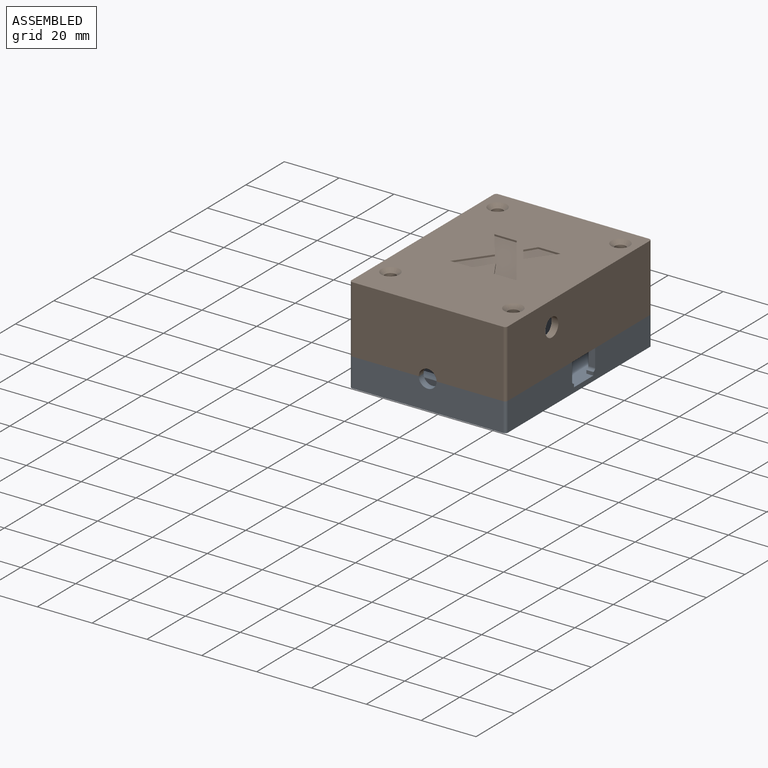
[diagram: assembled view]
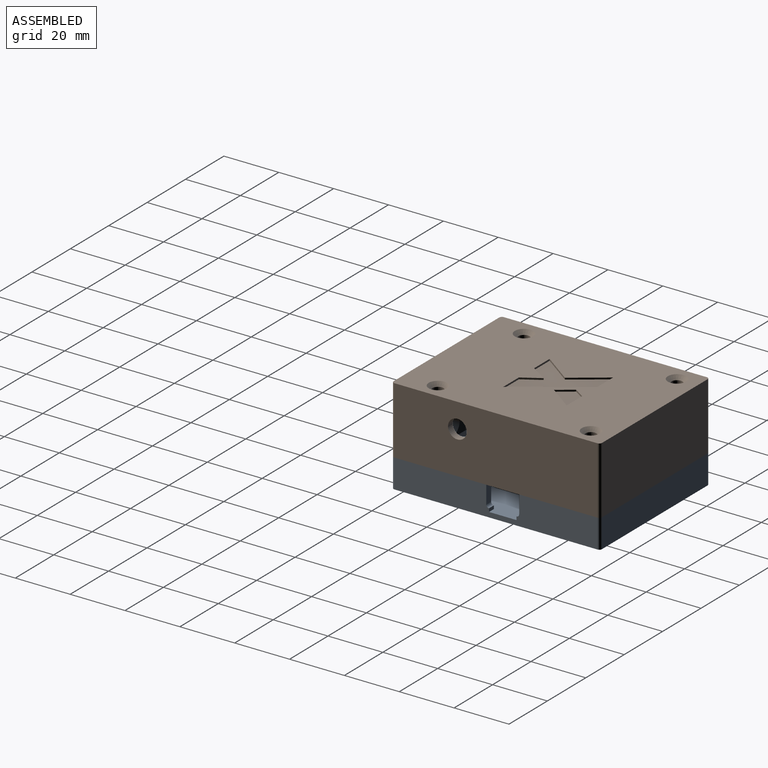
[diagram: assembled view, second angle]
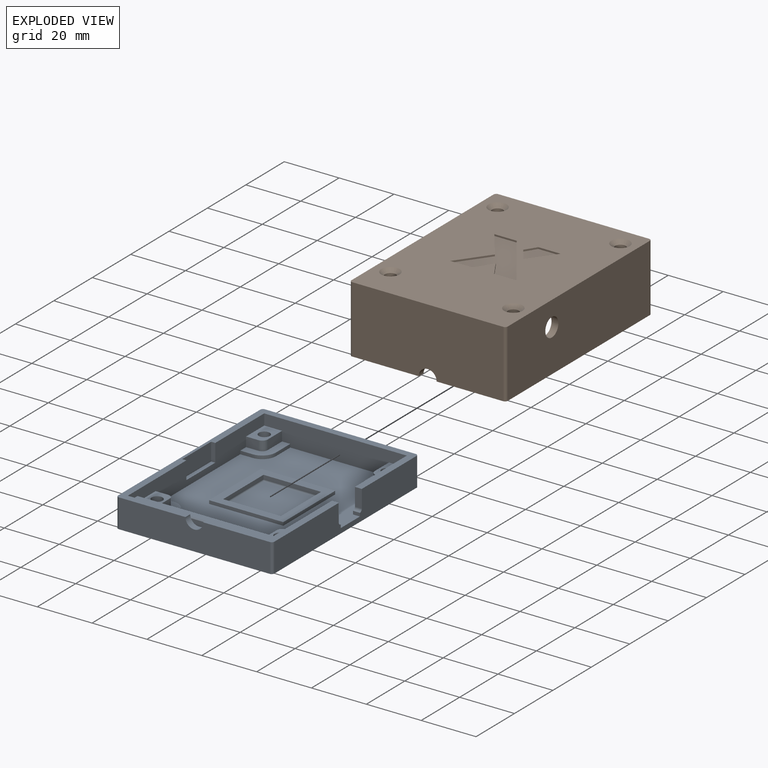
[diagram: exploded view]
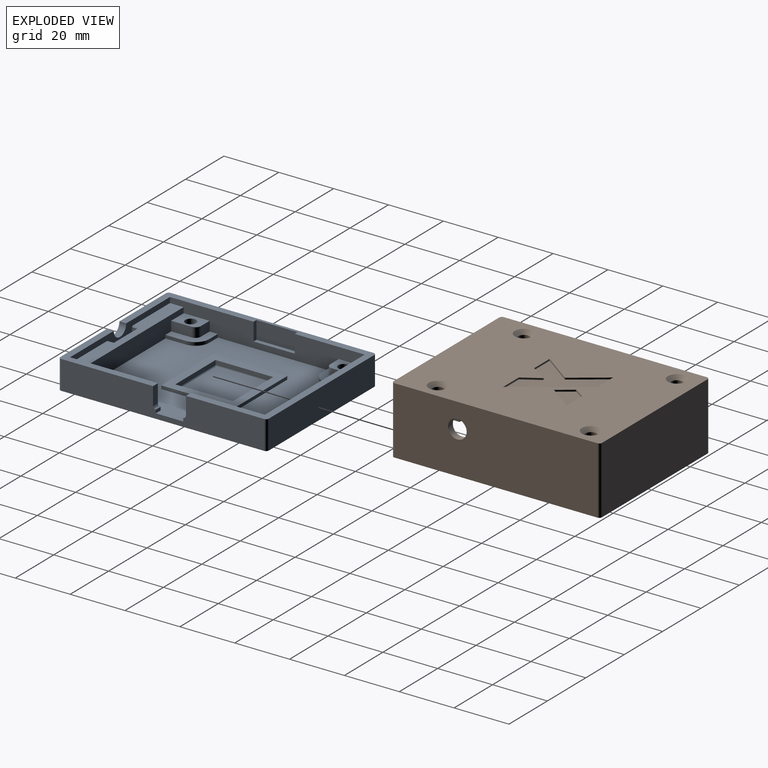
[diagram: exploded view, second angle]
ASSEMBLY  parts=2 mates=4
PART A: 115 faces, bbox 57x76x10.5 mm
  f0: plane 12.45x9.5mm, normal (0,0,1), area 52.3mm2, adj f18,f19,f21,f22,f68,f89,f90,f91
  f1: plane 12.45x9.5mm, normal (0,0,1), area 52.3mm2, adj f7,f30,f31,f65,f73,f95,f96,f97
  f2: plane 12.45x9.5mm, normal (0,0,1), area 52.3mm2, adj f18,f27,f28,f66,f73,f92,f93,f94
  f3: plane 12.45x9.5mm, normal (0,0,1), area 52.3mm2, adj f8,f19,f24,f25,f67,f100,f101,f102
  f4: plane 52x5mm, normal (0,0,1), area 228.1mm2, adj f7,f18,f20,f73,f83,f84,f85
  f5: plane 76x57mm, normal (0,0,1), area 427.5mm2, adj f8,f9,f14,f15,f16,f18,f19,f20
  f6: plane 34.5x25.25mm, normal (0,0,1), area 142.9mm2, adj f7,f9,f16,f20,f35,f69,f74
  f7: plane 33x8.7mm, normal (-1,0,0), area 198.3mm2, adj f1,f4,f6,f20,f30,f32,f69,f71
  f8: plane 28x8.7mm, normal (-1,0,0), area 188.3mm2, adj f3,f5,f19,f24,f26,f70,f72,f99
  f9: plane 74x10.5mm, normal (1,0,0), area 675.4mm2, adj f5,f6,f17,f35,f36,f69,f70,f71
  f10: cylinder r=2mm len=4.1mm, axis (0,0,1), area 51.5mm2, adj f32,f64
  f11: cylinder r=2mm len=4.1mm, axis (0,0,1), area 51.5mm2, adj f29,f57
  f12: cylinder r=2mm len=4.1mm, axis (0,0,1), area 51.5mm2, adj f26,f50
  f13: cylinder r=2mm len=4.1mm, axis (0,0,1), area 51.5mm2, adj f23,f43
  f14: plane 55x10.5mm, normal (0,1,0), area 577.5mm2, adj f5,f17,f33,f36
  f15: plane 74x10.5mm, normal (-1,0,0), area 777mm2, adj f5,f17,f33,f34
  f16: plane 55x10.5mm, normal (0,-1,0), area 560.9mm2, adj f5,f6,f17,f34,f35,f74
  f17: plane 76x57mm, normal (0,0,-1), area 4226.4mm2, adj f9,f14,f15,f16,f33,f34,f35,f36
  f18: plane 71x8.7mm, normal (1,0,0), area 390.7mm2, adj f0,f2,f4,f5,f19,f20,f21,f23
  f19: plane 52x8.7mm, normal (0,-1,0), area 384.1mm2, adj f0,f3,f5,f8,f18,f22,f23,f25
  f20: plane 52x6mm, normal (0,1,0), area 137.6mm2, adj f4,f5,f6,f7,f18,f74,f79,f80
  f21: plane 4.5x3.5mm, normal (0,-1,0), area 15.8mm2, adj f0,f18,f23,f68
  f22: plane 7.45x3.5mm, normal (1,0,0), area 26.1mm2, adj f0,f19,f23,f68
  f23: plane 9.45x6.5mm, normal (0,0,1), area 48mm2, adj f13,f18,f19,f21,f22,f68
  f24: plane 4.5x3.5mm, normal (0,-1,0), area 15.8mm2, adj f3,f8,f26,f67
  f25: plane 7.45x3.5mm, normal (-1,0,0), area 26.1mm2, adj f3,f19,f26,f67
  f26: plane 9.45x6.5mm, normal (0,0,1), area 48mm2, adj f8,f12,f19,f24,f25,f67
  f27: plane 4.5x3.5mm, normal (0,1,0), area 15.8mm2, adj f2,f18,f29,f66
  f28: plane 7.45x3.5mm, normal (1,0,0), area 26.1mm2, adj f2,f29,f66,f73
  f29: plane 9.45x6.5mm, normal (0,0,1), area 48mm2, adj f11,f18,f27,f28,f66,f73
  f30: plane 4.5x3.5mm, normal (0,1,0), area 15.8mm2, adj f1,f7,f32,f65
  f31: plane 7.45x3.5mm, normal (-1,0,0), area 26.1mm2, adj f1,f32,f65,f73
  f32: plane 9.45x6.5mm, normal (0,0,1), area 48mm2, adj f7,f10,f30,f31,f65,f73
  f33: cylinder r=1mm len=10.5mm, axis (0,0,1), area 16.5mm2, adj f5,f14,f15,f17
  f34: cylinder r=1mm len=10.5mm, axis (0,0,-1), area 16.5mm2, adj f5,f15,f16,f17
  f35: cylinder r=1mm len=10.5mm, axis (0,0,1), area 16.5mm2, adj f6,f9,f16,f17
  f36: cylinder r=1mm len=10.5mm, axis (0,0,-1), area 16.5mm2, adj f5,f9,f14,f17
  f37: plane 2.75x2.4mm, normal (-0.87,-0.5,0), area 7.6mm2, adj f17,f38,f42,f43
  f38: plane 2.75x2.4mm, normal (-0.87,0.5,0), area 7.6mm2, adj f17,f37,f39,f43
  f39: plane 3.18x2.4mm, normal (0,1,0), area 7.6mm2, adj f17,f38,f40,f43
  f40: plane 2.75x2.4mm, normal (0.87,0.5,0), area 7.6mm2, adj f17,f39,f41,f43
  f41: plane 2.75x2.4mm, normal (0.87,-0.5,0), area 7.6mm2, adj f17,f40,f42,f43
  f42: plane 3.18x2.4mm, normal (0,-1,0), area 7.6mm2, adj f17,f37,f41,f43
  f43: plane 6.35x5.5mm, normal (0,0,-1), area 13.6mm2, adj f13,f37,f38,f39,f40,f41,f42
  f44: plane 2.75x2.4mm, normal (-0.87,0.5,0), area 7.6mm2, adj f17,f45,f49,f50
  f45: plane 3.18x2.4mm, normal (0,1,0), area 7.6mm2, adj f17,f44,f46,f50
  f46: plane 2.75x2.4mm, normal (0.87,0.5,0), area 7.6mm2, adj f17,f45,f47,f50
  f47: plane 2.75x2.4mm, normal (0.87,-0.5,0), area 7.6mm2, adj f17,f46,f48,f50
  f48: plane 3.18x2.4mm, normal (0,-1,0), area 7.6mm2, adj f17,f47,f49,f50
  f49: plane 2.75x2.4mm, normal (-0.87,-0.5,0), area 7.6mm2, adj f17,f44,f48,f50
  f50: plane 6.35x5.5mm, normal (0,0,-1), area 13.6mm2, adj f12,f44,f45,f46,f47,f48,f49
  f51: plane 2.75x2.4mm, normal (-0.87,-0.5,0), area 7.6mm2, adj f17,f52,f56,f57
  f52: plane 2.75x2.4mm, normal (-0.87,0.5,0), area 7.6mm2, adj f17,f51,f53,f57
  f53: plane 3.18x2.4mm, normal (0,1,0), area 7.6mm2, adj f17,f52,f54,f57
  f54: plane 2.75x2.4mm, normal (0.87,0.5,0), area 7.6mm2, adj f17,f53,f55,f57
  f55: plane 2.75x2.4mm, normal (0.87,-0.5,0), area 7.6mm2, adj f17,f54,f56,f57
  f56: plane 3.18x2.4mm, normal (0,-1,0), area 7.6mm2, adj f17,f51,f55,f57
  f57: plane 6.35x5.5mm, normal (0,0,-1), area 13.6mm2, adj f11,f51,f52,f53,f54,f55,f56
  f58: plane 2.75x2.4mm, normal (-0.87,-0.5,0), area 7.6mm2, adj f17,f59,f63,f64
  f59: plane 2.75x2.4mm, normal (-0.87,0.5,0), area 7.6mm2, adj f17,f58,f60,f64
  f60: plane 3.18x2.4mm, normal (0,1,0), area 7.6mm2, adj f17,f59,f61,f64
  f61: plane 2.75x2.4mm, normal (0.87,0.5,0), area 7.6mm2, adj f17,f60,f62,f64
  f62: plane 2.75x2.4mm, normal (0.87,-0.5,0), area 7.6mm2, adj f17,f61,f63,f64
  f63: plane 3.18x2.4mm, normal (0,-1,0), area 7.6mm2, adj f17,f58,f62,f64
  f64: plane 6.35x5.5mm, normal (0,0,-1), area 13.6mm2, adj f10,f58,f59,f60,f61,f62,f63
  f65: cylinder r=2mm len=3.5mm, axis (0,0,-1), area 11mm2, adj f1,f30,f31,f32
  f66: cylinder r=2mm len=3.5mm, axis (0,0,-1), area 11mm2, adj f2,f27,f28,f29
  f67: cylinder r=2mm len=3.5mm, axis (0,0,1), area 11mm2, adj f3,f24,f25,f26
  f68: cylinder r=2mm len=3.5mm, axis (0,0,1), area 11mm2, adj f0,f21,f22,f23
  f69: plane 6.5x2.5mm, normal (0,1,0), area 16.3mm2, adj f6,f7,f9,f71
  f70: plane 6.5x2.5mm, normal (0,-1,0), area 16.3mm2, adj f5,f8,f9,f72
  f71: cylinder r=1mm len=2.5mm, axis (1,0,0), area 3.9mm2, adj f7,f9,f69,f98
  f72: cylinder r=1mm len=2.5mm, axis (-1,0,0), area 3.9mm2, adj f8,f9,f70,f99
  f73: plane 52x6.7mm, normal (0,1,0), area 280.1mm2, adj f1,f2,f4,f7,f18,f28,f29,f31
  f74: cylinder r=3.25mm len=6.5mm, axis (0,-1,0), area 25.5mm2, adj f5,f6,f16,f20
  f75: plane 6.5x1.5mm, normal (0,1,0), area 9.8mm2, adj f5,f18,f76,f78
  f76: plane 15x1.5mm, normal (0,0,1), area 22.5mm2, adj f18,f75,f77,f78
  f77: plane 6.5x1.5mm, normal (0,-1,0), area 9.8mm2, adj f5,f18,f76,f78
  f78: plane 15x6.5mm, normal (1,0,0), area 97.5mm2, adj f5,f75,f76,f77
  f79: plane 3.6x2mm, normal (1,0,0), area 7.2mm2, adj f20,f81,f82,f83
  f80: plane 3.6x2mm, normal (-1,0,0), area 7.2mm2, adj f20,f81,f82,f85
  f81: plane 12.5x3.6mm, normal (0,-1,0), area 45mm2, adj f79,f80,f82,f84
  f82: plane 12.5x2mm, normal (0,0,1), area 25mm2, adj f20,f79,f80,f81
  f83: plane 2.4x0.4mm, normal (0.71,0,0.71), area 1.2mm2, adj f4,f20,f79,f84
  f84: plane 13.3x0.4mm, normal (0,-0.71,0.71), area 7.3mm2, adj f4,f81,f83,f85
  f85: plane 2.4x0.4mm, normal (-0.71,0,0.71), area 1.2mm2, adj f4,f20,f80,f84
  f86: plane 27x1.2mm, normal (0,1,0), area 32.4mm2, adj f87,f103,f104,f110
  f87: plane 27x1.2mm, normal (1,0,0), area 32.4mm2, adj f86,f88,f104,f110
  f88: plane 27x1.2mm, normal (0,-1,0), area 32.4mm2, adj f87,f103,f104,f110
  f89: plane 7.45x1.2mm, normal (1,0,0), area 8.9mm2, adj f0,f19,f90,f104
  f90: cylinder r=5mm len=5mm, axis (0,0,1), area 9.4mm2, adj f0,f89,f91,f104
  f91: plane 4.5x1.2mm, normal (0,-1,0), area 5.4mm2, adj f0,f18,f90,f104
  f92: plane 4.5x1.2mm, normal (0,1,0), area 5.4mm2, adj f2,f18,f93,f104
  f93: cylinder r=5mm len=5mm, axis (0,0,1), area 9.4mm2, adj f2,f92,f94,f104
  f94: plane 7.45x1.2mm, normal (1,0,0), area 8.9mm2, adj f2,f73,f93,f104
  f95: plane 7.45x1.2mm, normal (-1,0,0), area 8.9mm2, adj f1,f73,f96,f104
  f96: cylinder r=5mm len=5mm, axis (0,0,1), area 9.4mm2, adj f1,f95,f97,f104
  f97: plane 4.5x1.2mm, normal (0,1,0), area 5.4mm2, adj f1,f7,f96,f104
  f98: plane 2.5x1.2mm, normal (0,1,0), area 3mm2, adj f7,f9,f71,f104
  f99: plane 2.5x1.2mm, normal (0,-1,0), area 3mm2, adj f8,f9,f72,f104
  f100: plane 4.5x1.2mm, normal (0,-1,0), area 5.4mm2, adj f3,f8,f101,f104
  f101: cylinder r=5mm len=5mm, axis (0,0,1), area 9.4mm2, adj f3,f100,f102,f104
  f102: plane 7.45x1.2mm, normal (-1,0,0), area 8.9mm2, adj f3,f19,f101,f104
  f103: plane 27x1.2mm, normal (-1,0,0), area 32.4mm2, adj f86,f88,f104,f110
  f104: plane 66x54.5mm, normal (0,0,1), area 2276.4mm2, adj f7,f8,f9,f18,f19,f73,f86,f87
  f105: plane 20x20mm, normal (0,0,1), area 400mm2, adj f111,f112,f113,f114
  f106: plane 21x1.5mm, normal (0,1,0), area 31.5mm2, adj f107,f109,f110,f114
  f107: plane 21x1.5mm, normal (-1,0,0), area 31.5mm2, adj f106,f108,f110,f113
  f108: plane 21x1.5mm, normal (0,-1,0), area 31.5mm2, adj f107,f109,f110,f111
  f109: plane 21x1.5mm, normal (1,0,0), area 31.5mm2, adj f106,f108,f110,f112
  f110: plane 27x27mm, normal (0,0,1), area 288mm2, adj f86,f87,f88,f103,f106,f107,f108,f109
  f111: cylinder r=0.5mm len=21mm, axis (-1,0,0), area 16.2mm2, adj f105,f108,f112,f113
  f112: cylinder r=0.5mm len=21mm, axis (0,-1,0), area 16.2mm2, adj f105,f109,f111,f114
  f113: cylinder r=0.5mm len=21mm, axis (0,1,0), area 16.2mm2, adj f105,f107,f111,f114
  f114: cylinder r=0.5mm len=21mm, axis (1,0,0), area 16.2mm2, adj f105,f106,f112,f113
PART B: 77 faces, bbox 57x76x26.4 mm
  f0: plane 76x57mm, normal (0,0,-1), area 646.8mm2, adj f1,f3,f6,f8,f9,f10,f11,f12
  f1: plane 55x24.5mm, normal (0,-1,0), area 1330.9mm2, adj f0,f15,f24,f25,f75
  f2: plane 24.1x7.95mm, normal (-1,0,0), area 191.6mm2, adj f13,f56,f58,f61
  f3: plane 7.95x1.4mm, normal (1,0,0), area 11.1mm2, adj f0,f56,f58,f60
  f4: plane 6.95x5mm, normal (0,0,-1), area 22.2mm2, adj f45,f59,f60,f61,f62
  f5: plane 24.1x8.95mm, normal (1,0,0), area 215.7mm2, adj f13,f43,f57,f74
  f6: plane 8.95x1.4mm, normal (-1,0,0), area 12.5mm2, adj f0,f43,f57,f71
  f7: plane 7.95x5mm, normal (0,0,-1), area 27.2mm2, adj f49,f63,f64,f65,f66
  f8: plane 6x1.4mm, normal (0,1,0), area 8.4mm2, adj f0,f9,f54,f69
  f9: plane 24.1x9.45mm, normal (1,0,0), area 227mm2, adj f0,f8,f13,f14,f40,f70
  f10: plane 24.1x9.45mm, normal (-1,0,0), area 227mm2, adj f0,f13,f14,f42,f53,f63
  f11: plane 48.1x22.7mm, normal (-1,0,0), area 1055.6mm2, adj f0,f13,f42,f58,f76
  f12: plane 47.1x22.7mm, normal (1,0,0), area 1069.2mm2, adj f0,f13,f40,f43
  f13: plane 71x52mm, normal (0,0,-1), area 3459.3mm2, adj f2,f5,f9,f10,f11,f12,f14,f19
  f14: plane 39x22.7mm, normal (0,-1,0), area 885.3mm2, adj f0,f9,f10,f13
  f15: plane 76x57mm, normal (0,0,1), area 3884.3mm2, adj f1,f16,f17,f18,f22,f23,f24,f25
  f16: plane 74x24.5mm, normal (1,0,0), area 1776.7mm2, adj f0,f15,f22,f25,f76
  f17: plane 55x24.5mm, normal (0,1,0), area 1347.5mm2, adj f0,f15,f22,f23
  f18: plane 74x24.5mm, normal (-1,0,0), area 1813mm2, adj f0,f15,f23,f24
  f19: plane 22.7x5.5mm, normal (1,0,0), area 124.8mm2, adj f0,f13,f20,f57
  f20: plane 52x22.7mm, normal (0,1,0), area 1163.8mm2, adj f0,f13,f19,f21,f75
  f21: plane 22.7x5.5mm, normal (-1,0,0), area 124.8mm2, adj f0,f13,f20,f56
  f22: cylinder r=1mm len=24.5mm, axis (0,0,1), area 38.5mm2, adj f0,f15,f16,f17
  f23: cylinder r=1mm len=24.5mm, axis (0,0,-1), area 38.5mm2, adj f0,f15,f17,f18
  f24: cylinder r=1mm len=24.5mm, axis (0,0,1), area 38.5mm2, adj f0,f1,f15,f18
  f25: cylinder r=1mm len=24.5mm, axis (0,0,-1), area 38.5mm2, adj f0,f1,f15,f16
  f26: plane 8.14x0.6mm, normal (0,-1,0), area 4.9mm2, adj f15,f27,f33,f34
  f27: plane 11.68x8.35mm, normal (0.81,0.58,0), area 8.6mm2, adj f15,f26,f28,f34
  f28: plane 11.39x8.29mm, normal (0.81,-0.59,0), area 8.5mm2, adj f15,f27,f29,f34
  f29: plane 8.08x0.6mm, normal (0,1,0), area 4.8mm2, adj f15,f28,f30,f34
  f30: plane 6.32x4.09mm, normal (-0.84,0.54,0), area 4.5mm2, adj f15,f29,f31,f34
  f31: plane 6.32x3.87mm, normal (0.85,0.52,0), area 4.4mm2, adj f15,f30,f32,f34
  f32: plane 8.14x0.6mm, normal (0,1,0), area 4.9mm2, adj f15,f31,f33,f34
  f33: plane 23.07x16.1mm, normal (-0.82,-0.57,0), area 16.9mm2, adj f15,f26,f32,f34
  f34: plane 24.24x23.07mm, normal (0,0,1), area 251.6mm2, adj f26,f27,f28,f29,f30,f31,f32,f33
  f35: plane 4.09x2.65mm, normal (0.84,-0.54,0), area 2.9mm2, adj f15,f36,f38,f39
  f36: plane 5.34x3.87mm, normal (0.81,0.59,0), area 4mm2, adj f15,f35,f37,f39
  f37: plane 9.42x6.93mm, normal (-0.81,0.59,0), area 7mm2, adj f15,f36,f38,f39
  f38: plane 8.14x0.6mm, normal (0,-1,0), area 4.9mm2, adj f15,f35,f37,f39
  f39: plane 10.8x9.42mm, normal (0,0,1), area 53.3mm2, adj f35,f36,f37,f38
  f40: plane 24.1x6.5mm, normal (0,-1,0), area 155.9mm2, adj f0,f9,f12,f13,f54,f68
  f41: plane 7.95x5mm, normal (0,0,-1), area 27.2mm2, adj f51,f67,f68,f69,f70
  f42: plane 24.1x6.5mm, normal (0,-1,0), area 155.9mm2, adj f0,f10,f11,f13,f55,f65
  f43: plane 24.1x6.5mm, normal (0,1,0), area 155.9mm2, adj f0,f5,f6,f12,f13,f72
  f44: plane 7.95x5mm, normal (0,0,-1), area 27.2mm2, adj f47,f71,f72,f73,f74
  f45: cylinder r=2mm len=25.04mm, axis (0,0,1), area 314.7mm2, adj f4,f46
  f46: cone r=2mm half-angle=45deg, axis (0,0,1), area 32.4mm2, adj f15,f45
  f47: cylinder r=2mm len=25.04mm, axis (0,0,1), area 314.7mm2, adj f44,f48
  f48: cone r=2mm half-angle=45deg, axis (0,0,1), area 32.4mm2, adj f15,f47
  f49: cylinder r=2mm len=25.04mm, axis (0,0,1), area 314.7mm2, adj f7,f50
  f50: cone r=2mm half-angle=45deg, axis (0,0,1), area 32.4mm2, adj f15,f49
  f51: cylinder r=2mm len=25.04mm, axis (0,0,1), area 314.7mm2, adj f41,f52
  f52: cone r=2mm half-angle=45deg, axis (0,0,1), area 32.4mm2, adj f15,f51
  f53: plane 6x1.4mm, normal (0,1,0), area 8.4mm2, adj f0,f10,f55,f64
  f54: plane 8.95x1.4mm, normal (-1,0,0), area 12.5mm2, adj f0,f8,f40,f67
  f55: plane 8.95x1.4mm, normal (1,0,0), area 12.5mm2, adj f0,f42,f53,f66
  f56: plane 24.1x6.5mm, normal (0,-1,0), area 155.9mm2, adj f0,f2,f3,f13,f21,f59
  f57: plane 24.1x6.5mm, normal (0,-1,0), area 155.9mm2, adj f0,f5,f6,f13,f19,f73
  f58: plane 24.1x6.5mm, normal (0,1,0), area 155.9mm2, adj f0,f2,f3,f11,f13,f62
  f59: plane 6x0.5mm, normal (0,-0.71,-0.71), area 3.9mm2, adj f4,f56,f60,f61
  f60: plane 7.95x0.5mm, normal (0.71,0,-0.71), area 5.3mm2, adj f3,f4,f59,f62
  f61: plane 7.95x0.5mm, normal (-0.71,0,-0.71), area 5.3mm2, adj f2,f4,f59,f62
  f62: plane 6x0.5mm, normal (0,0.71,-0.71), area 3.9mm2, adj f4,f58,f60,f61
  f63: plane 8.95x0.5mm, normal (-0.71,0,-0.71), area 6mm2, adj f7,f10,f64,f65
  f64: plane 6x0.5mm, normal (0,0.71,-0.71), area 3.9mm2, adj f7,f53,f63,f66
  f65: plane 6x0.5mm, normal (0,-0.71,-0.71), area 3.9mm2, adj f7,f42,f63,f66
  f66: plane 8.95x0.5mm, normal (0.71,0,-0.71), area 6mm2, adj f7,f55,f64,f65
  f67: plane 8.95x0.5mm, normal (-0.71,0,-0.71), area 6mm2, adj f41,f54,f68,f69
  f68: plane 6x0.5mm, normal (0,-0.71,-0.71), area 3.9mm2, adj f40,f41,f67,f70
  f69: plane 6x0.5mm, normal (0,0.71,-0.71), area 3.9mm2, adj f8,f41,f67,f70
  f70: plane 8.95x0.5mm, normal (0.71,0,-0.71), area 6mm2, adj f9,f41,f68,f69
  f71: plane 8.95x0.5mm, normal (-0.71,0,-0.71), area 6mm2, adj f6,f44,f72,f73
  f72: plane 6x0.5mm, normal (0,0.71,-0.71), area 3.9mm2, adj f43,f44,f71,f74
  f73: plane 6x0.5mm, normal (0,-0.71,-0.71), area 3.9mm2, adj f44,f57,f71,f74
  f74: plane 8.95x0.5mm, normal (0.71,0,-0.71), area 6mm2, adj f5,f44,f72,f73
  f75: cylinder r=3.25mm len=6.5mm, axis (0,-1,0), area 25.5mm2, adj f0,f1,f20
  f76: cylinder r=3.4mm len=6.8mm, axis (1,0,0), area 53.4mm2, adj f11,f16
PLACE A t=(-2.07,18.22,-7.4)mm
PLACE B t=(-2.07,18.22,22.8)mm
MATE parallel B.f1 <-> A.f16  axis (0,-1,0) through (-2.07,-22.28,12.49)mm
MATE planar B.f0 <-> A.f5  axis (0,0,-1) through (-2.09,17.08,0.1)mm
MATE planar B.f18 <-> A.f15  axis (-1,0,0) through (-30.57,15.72,12.35)mm
MATE planar A.f16 <-> B.f1  axis (0,-1,0) through (-2.07,-22.28,-5.26)mm
